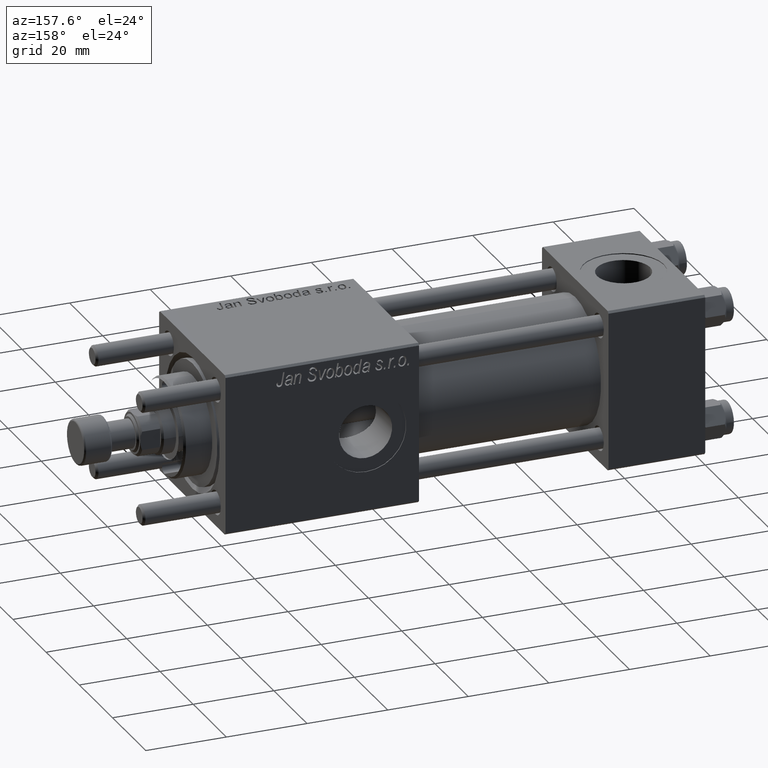
[diagram: clean part render]
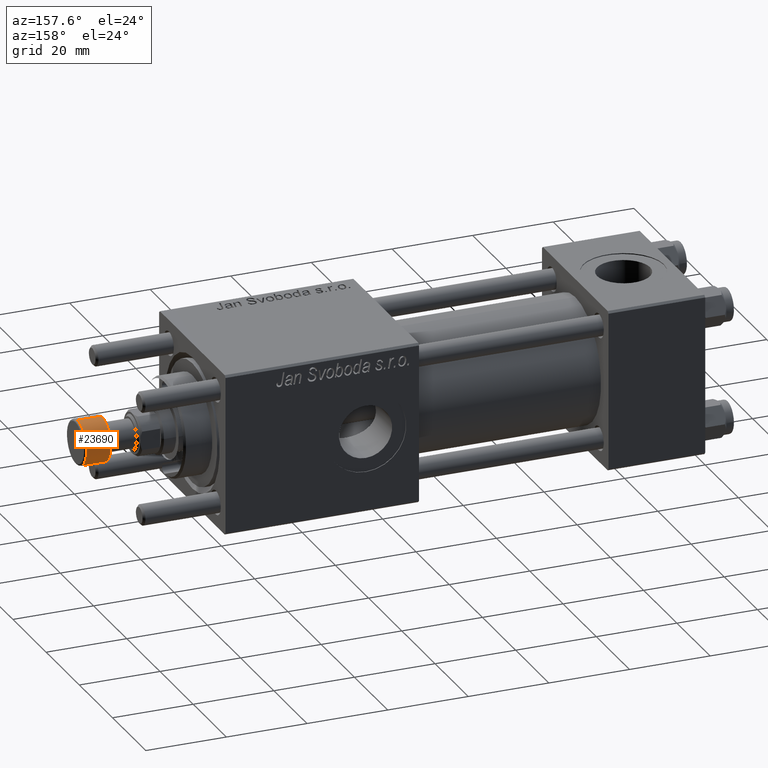
[diagram: same view with one face highlighted and labeled with its STEP entity id]
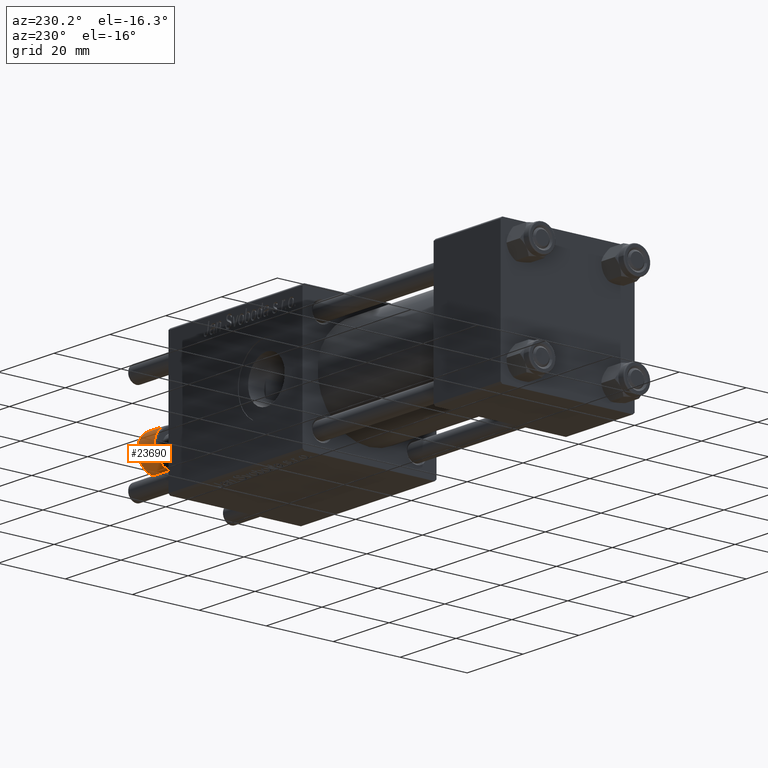
[diagram: same view with one face highlighted and labeled with its STEP entity id]
A machine part, auxiliary view. The second image highlights one B-rep face of the part: STEP entity #23690.
A second angle (auxiliary view) of the same face is appended — the face is thin or edge-on in the first view.
In plain terms, the highlighted cylindrical surface (edge-blend (fillet) strip) has radius 5.5 mm, axis along (1, 0, 0).
Its self-contained STEP definition (entity closure, byte-faithful):
#453 = ORIENTED_EDGE ( 'NONE', *, *, #9157, .T. ) ;
#1482 = CARTESIAN_POINT ( 'NONE',  ( 5.500000000000000000, 0.000000000000000000, -7.000000000000000000 ) ) ;
#1616 = EDGE_CURVE ( 'NONE', #25705, #23182, #34042, .T. ) ;
#1704 = VECTOR ( 'NONE', #33434, 1000.000000000000000 ) ;
#2874 = EDGE_CURVE ( 'NONE', #17317, #25705, #55317, .T. ) ;
#7442 = ORIENTED_EDGE ( 'NONE', *, *, #2874, .T. ) ;
#9157 = EDGE_CURVE ( 'NONE', #23182, #26968, #19271, .T. ) ;
#11031 = LINE ( 'NONE', #1482, #1704 ) ;
#11914 = CARTESIAN_POINT ( 'NONE',  ( 0.000000000000000000, 0.000000000000000000, -0.4999999999999995559 ) ) ;
#16188 = VECTOR ( 'NONE', #20300, 1000.000000000000000 ) ;
#17317 = VERTEX_POINT ( 'NONE', #27971 ) ;
#19271 = CIRCLE ( 'NONE', #25044, 5.500000000000000000 ) ;
#20300 = DIRECTION ( 'NONE',  ( 0.000000000000000000, 0.000000000000000000, 1.000000000000000000 ) ) ;
#20597 = DIRECTION ( 'NONE',  ( -0.000000000000000000, -0.000000000000000000, -1.000000000000000000 ) ) ;
#20628 = CARTESIAN_POINT ( 'NONE',  ( 5.500000000000000000, 0.000000000000000000, -0.4999999999999995559 ) ) ;
#23182 = VERTEX_POINT ( 'NONE', #46082 ) ;
#23690 = ADVANCED_FACE ( 'NONE', ( #49233 ), #39985, .T. ) ;
#24280 = ORIENTED_EDGE ( 'NONE', *, *, #39847, .F. ) ;
#25044 = AXIS2_PLACEMENT_3D ( 'NONE', #11914, #20597, #52833 ) ;
#25538 = DIRECTION ( 'NONE',  ( 0.000000000000000000, 0.000000000000000000, 1.000000000000000000 ) ) ;
#25705 = VERTEX_POINT ( 'NONE', #40725 ) ;
#26968 = VERTEX_POINT ( 'NONE', #20628 ) ;
#27971 = CARTESIAN_POINT ( 'NONE',  ( 5.500000000000000000, 0.000000000000000000, -6.500000000000000888 ) ) ;
#29112 = CARTESIAN_POINT ( 'NONE',  ( 0.000000000000000000, 0.000000000000000000, -6.500000000000000888 ) ) ;
#29371 = EDGE_LOOP ( 'NONE', ( #7442, #49789, #453, #24280 ) ) ;
#29713 = DIRECTION ( 'NONE',  ( 1.000000000000000000, 0.000000000000000000, 0.000000000000000000 ) ) ;
#31013 = CARTESIAN_POINT ( 'NONE',  ( 0.000000000000000000, 0.000000000000000000, -7.000000000000000000 ) ) ;
#33434 = DIRECTION ( 'NONE',  ( 0.000000000000000000, 0.000000000000000000, 1.000000000000000000 ) ) ;
#34042 = LINE ( 'NONE', #38220, #16188 ) ;
#36257 = AXIS2_PLACEMENT_3D ( 'NONE', #29112, #25538, #29713 ) ;
#38220 = CARTESIAN_POINT ( 'NONE',  ( -5.500000000000000000, 6.735557395310442023E-16, -7.000000000000000000 ) ) ;
#39847 = EDGE_CURVE ( 'NONE', #17317, #26968, #11031, .T. ) ;
#39985 = CYLINDRICAL_SURFACE ( 'NONE', #41577, 5.500000000000000000 ) ;
#40725 = CARTESIAN_POINT ( 'NONE',  ( -5.500000000000000000, 6.735557395310442023E-16, -6.500000000000000888 ) ) ;
#41577 = AXIS2_PLACEMENT_3D ( 'NONE', #31013, #48366, #53425 ) ;
#46082 = CARTESIAN_POINT ( 'NONE',  ( -5.500000000000000000, 6.735557395310442023E-16, -0.4999999999999995559 ) ) ;
#48366 = DIRECTION ( 'NONE',  ( 0.000000000000000000, 0.000000000000000000, 1.000000000000000000 ) ) ;
#49233 = FACE_OUTER_BOUND ( 'NONE', #29371, .T. ) ;
#49789 = ORIENTED_EDGE ( 'NONE', *, *, #1616, .T. ) ;
#52833 = DIRECTION ( 'NONE',  ( 1.000000000000000000, 0.000000000000000000, 0.000000000000000000 ) ) ;
#53425 = DIRECTION ( 'NONE',  ( 1.000000000000000000, 0.000000000000000000, 0.000000000000000000 ) ) ;
#55317 = CIRCLE ( 'NONE', #36257, 5.500000000000000000 ) ;